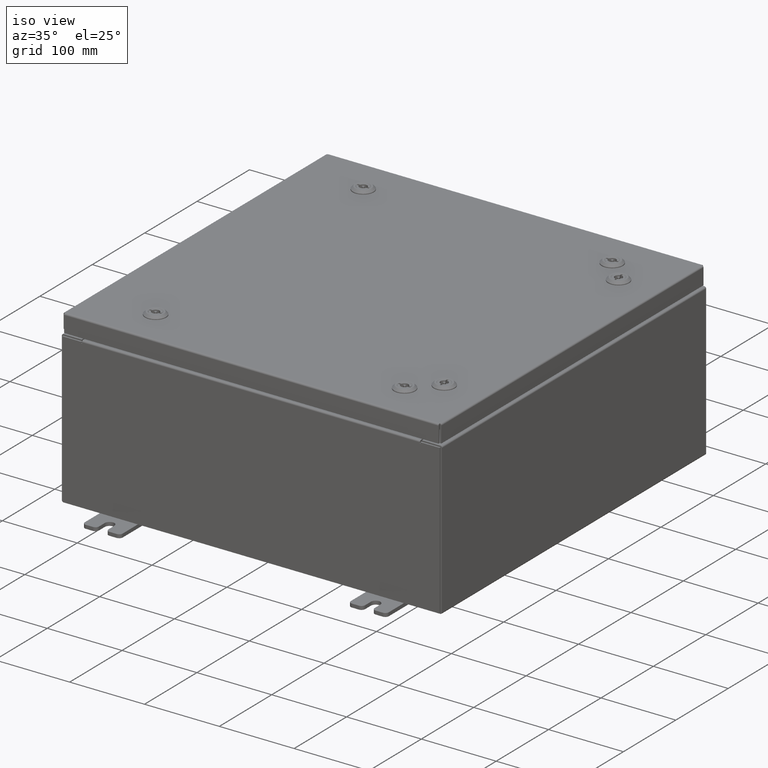
[diagram: clean part render]
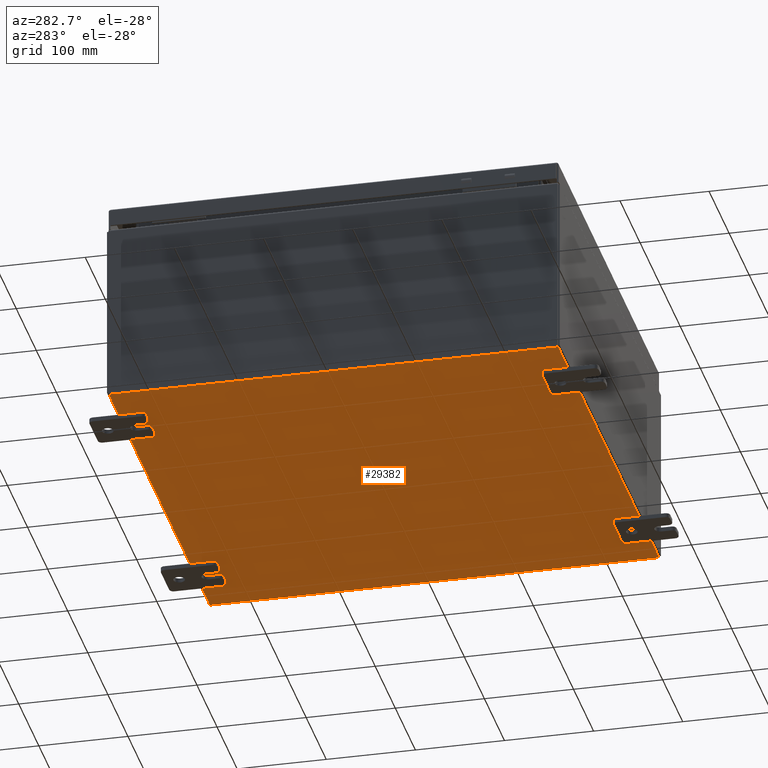
[diagram: tour spotlight — one face highlighted and labeled with its STEP entity id]
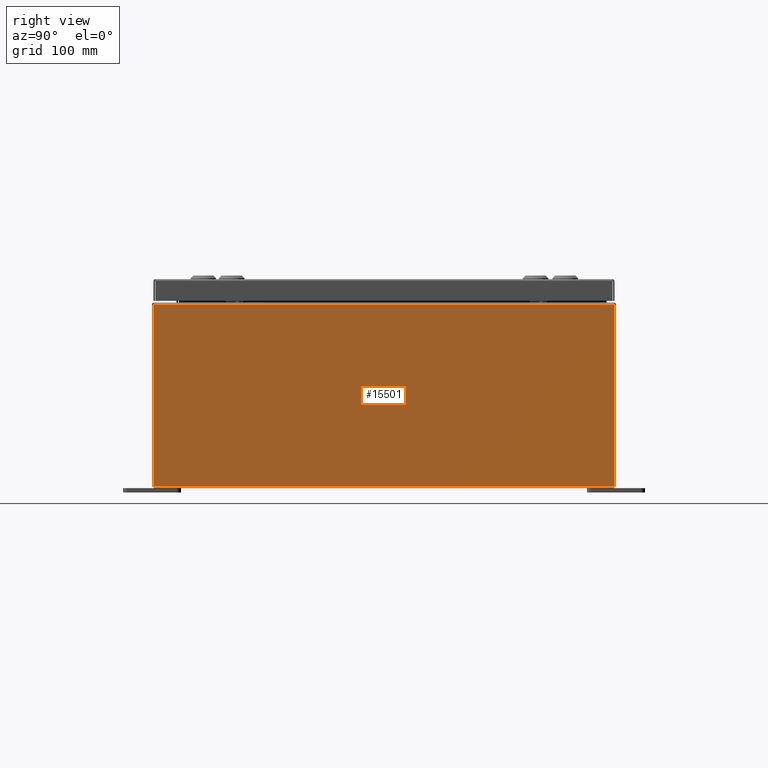
[diagram: tour spotlight — one face highlighted and labeled with its STEP entity id]
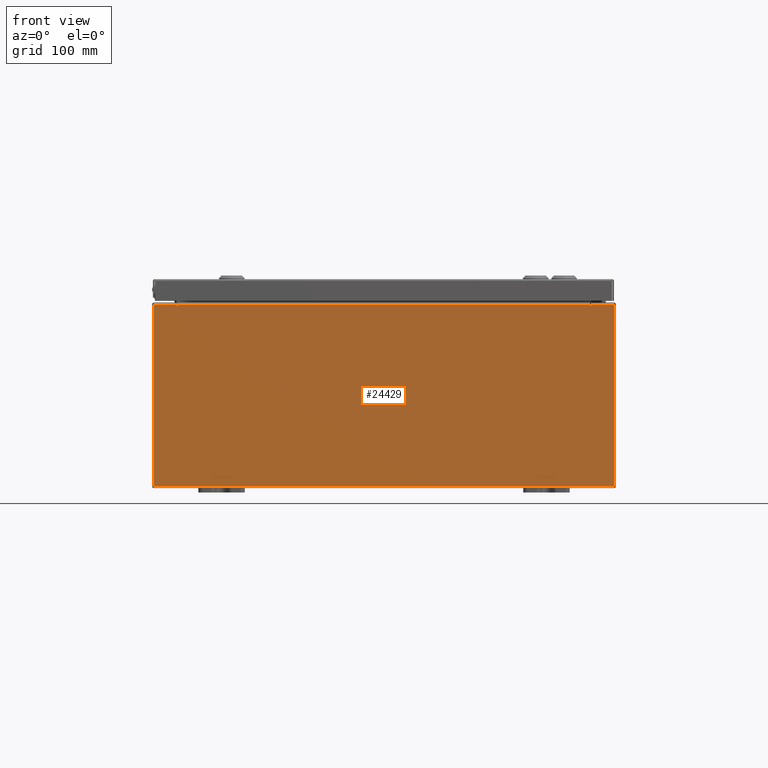
[diagram: tour spotlight — one face highlighted and labeled with its STEP entity id]
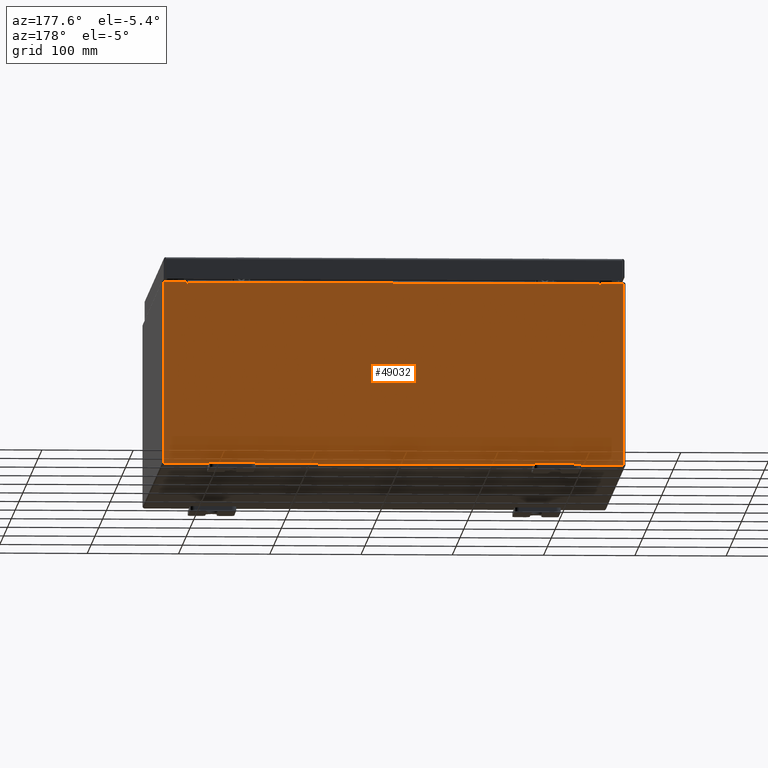
[diagram: tour spotlight — one face highlighted and labeled with its STEP entity id]
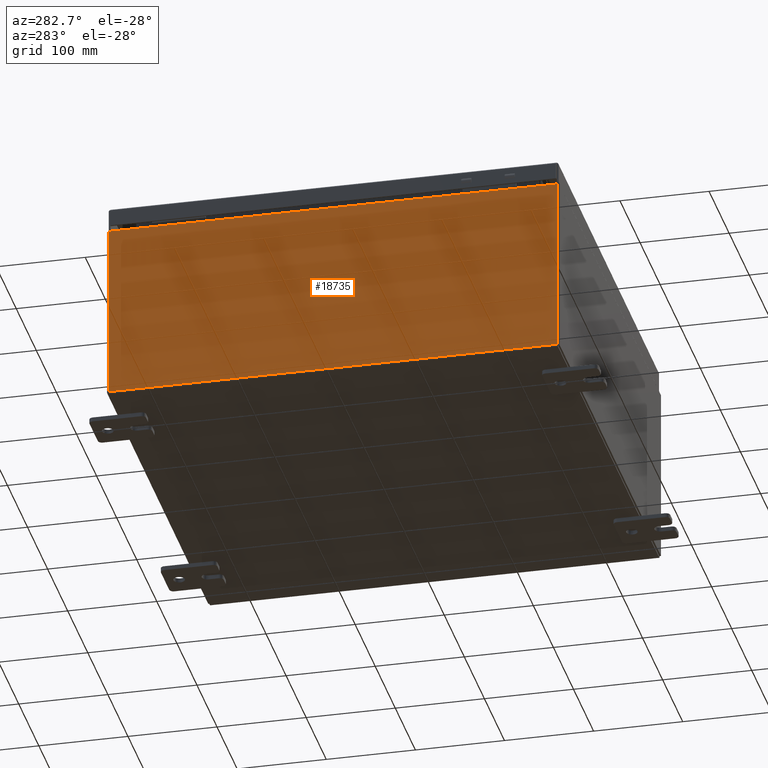
[diagram: tour spotlight — one face highlighted and labeled with its STEP entity id]
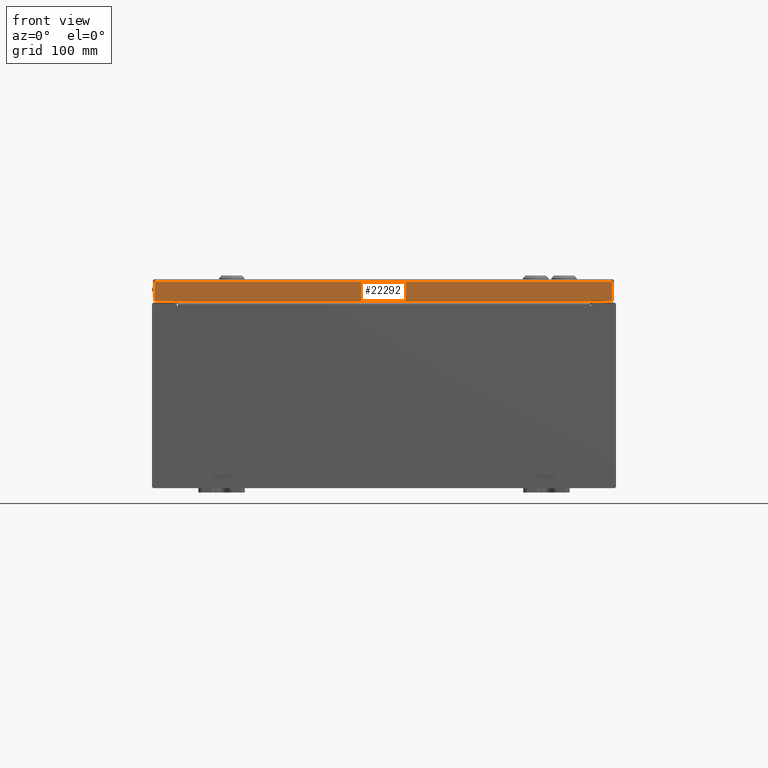
[diagram: tour spotlight — one face highlighted and labeled with its STEP entity id]
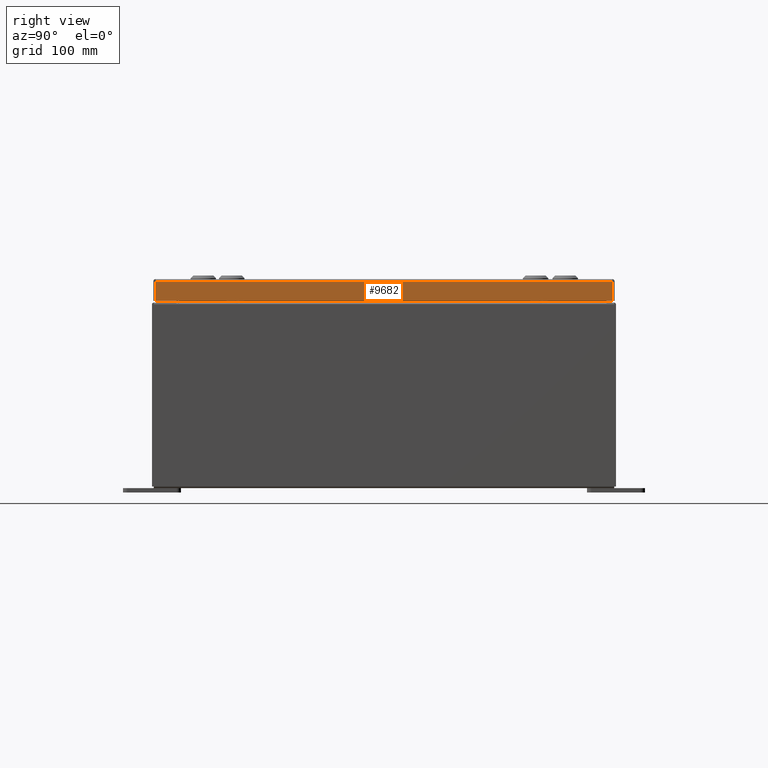
[diagram: tour spotlight — one face highlighted and labeled with its STEP entity id]
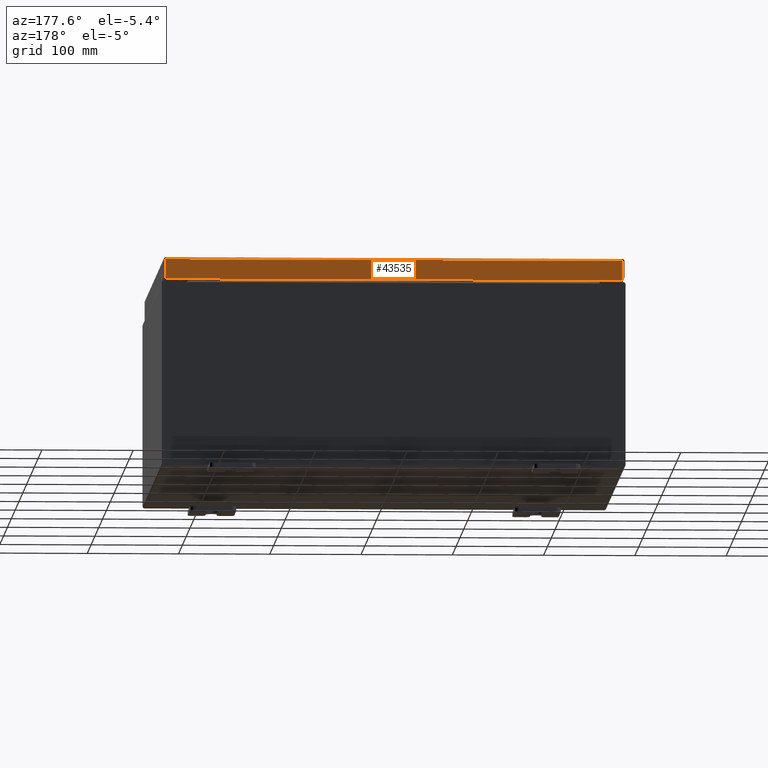
[diagram: tour spotlight — one face highlighted and labeled with its STEP entity id]
A machine part: a face-by-face anatomy tour. The part has 5420 B-rep faces; the first image is the clean iso view, then the 8 largest visible faces are spotlighted one at a time (largest first), each with its STEP entity span.

Face 1 — auxiliary view, entity #29382. In plain terms, the highlighted planar face has unit normal (0, 0, -1).
Definition (entity closure, byte-faithful):
#1431 = LINE ( 'NONE', #46999, #55066 ) ;
#3151 = FACE_OUTER_BOUND ( 'NONE', #36932, .T. ) ;
#3242 = LINE ( 'NONE', #22920, #40888 ) ;
#3939 = EDGE_CURVE ( 'NONE', #6039, #48977, #3242, .T. ) ;
#5362 = ORIENTED_EDGE ( 'NONE', *, *, #33642, .T. ) ;
#6039 = VERTEX_POINT ( 'NONE', #60725 ) ;
#6744 = VECTOR ( 'NONE', #30778, 39.37007874015748100 ) ;
#12802 = VERTEX_POINT ( 'NONE', #13145 ) ;
#13145 = CARTESIAN_POINT ( 'NONE',  ( -9.912300000000000100, -9.925299999999998200, -0.07469999999999996100 ) ) ;
#15562 = VERTEX_POINT ( 'NONE', #62225 ) ;
#20045 = ORIENTED_EDGE ( 'NONE', *, *, #62226, .T. ) ;
#20337 = LINE ( 'NONE', #43861, #31885 ) ;
#20419 = EDGE_CURVE ( 'NONE', #12802, #15562, #1431, .T. ) ;
#22920 = CARTESIAN_POINT ( 'NONE',  ( -10.00000000000000000, 9.925300000000001800, -0.07469999999999998900 ) ) ;
#25873 = CARTESIAN_POINT ( 'NONE',  ( 0.0000000000000000000, 0.0000000000000000000, -0.07469999999999998900 ) ) ;
#29382 = ADVANCED_FACE ( 'NONE', ( #3151 ), #50085, .T. ) ;
#30778 = DIRECTION ( 'NONE',  ( -0.0000000000000000000, 1.000000000000000000, -0.0000000000000000000 ) ) ;
#30831 = DIRECTION ( 'NONE',  ( -1.000000000000000000, 0.0000000000000000000, -0.0000000000000000000 ) ) ;
#31885 = VECTOR ( 'NONE', #48789, 39.37007874015748100 ) ;
#32472 = DIRECTION ( 'NONE',  ( 1.000000000000000000, 0.0000000000000000000, 0.0000000000000000000 ) ) ;
#33642 = EDGE_CURVE ( 'NONE', #12802, #48977, #44364, .T. ) ;
#36932 = EDGE_LOOP ( 'NONE', ( #55991, #5362, #47515, #20045 ) ) ;
#38048 = AXIS2_PLACEMENT_3D ( 'NONE', #25873, #60075, #30831 ) ;
#40888 = VECTOR ( 'NONE', #57109, 39.37007874015748100 ) ;
#43861 = CARTESIAN_POINT ( 'NONE',  ( 9.912300000000000100, 9.925300000000001800, -0.07469999999999996100 ) ) ;
#44364 = LINE ( 'NONE', #60017, #6744 ) ;
#46999 = CARTESIAN_POINT ( 'NONE',  ( -10.00000000000000000, -9.925299999999998200, -0.07469999999999998900 ) ) ;
#47515 = ORIENTED_EDGE ( 'NONE', *, *, #3939, .F. ) ;
#48789 = DIRECTION ( 'NONE',  ( -0.0000000000000000000, -1.000000000000000000, -0.0000000000000000000 ) ) ;
#48977 = VERTEX_POINT ( 'NONE', #51648 ) ;
#50085 = PLANE ( 'NONE',  #38048 ) ;
#51648 = CARTESIAN_POINT ( 'NONE',  ( -9.912300000000000100, 9.925300000000001800, -0.07469999999999998900 ) ) ;
#55066 = VECTOR ( 'NONE', #32472, 39.37007874015748100 ) ;
#55991 = ORIENTED_EDGE ( 'NONE', *, *, #20419, .F. ) ;
#57109 = DIRECTION ( 'NONE',  ( -1.000000000000000000, -0.0000000000000000000, -0.0000000000000000000 ) ) ;
#60017 = CARTESIAN_POINT ( 'NONE',  ( -9.912300000000000100, -9.925299999999998200, -0.07469999999999996100 ) ) ;
#60075 = DIRECTION ( 'NONE',  ( 0.0000000000000000000, 0.0000000000000000000, -1.000000000000000000 ) ) ;
#60725 = CARTESIAN_POINT ( 'NONE',  ( 9.912300000000000100, 9.925299999999998200, -0.07469999999999996100 ) ) ;
#62225 = CARTESIAN_POINT ( 'NONE',  ( 9.912300000000000100, -9.925299999999998200, -0.07469999999999998900 ) ) ;
#62226 = EDGE_CURVE ( 'NONE', #6039, #15562, #20337, .T. ) ;

Face 2 — right view, entity #15501. In plain terms, the highlighted planar face has unit normal (-1, 0, 0).
Definition (entity closure, byte-faithful):
#212 = VERTEX_POINT ( 'NONE', #44819 ) ;
#3304 = PLANE ( 'NONE',  #19532 ) ;
#3432 = ORIENTED_EDGE ( 'NONE', *, *, #36172, .T. ) ;
#3761 = CARTESIAN_POINT ( 'NONE',  ( 10.00000000000000000, 9.925300000000001800, -3.063084562896055100E-014 ) ) ;
#4114 = CARTESIAN_POINT ( 'NONE',  ( 10.00000000000002800, 9.925299999999992900, 7.837599999999999200 ) ) ;
#5298 = VECTOR ( 'NONE', #31752, 39.37007874015748100 ) ;
#5934 = DIRECTION ( 'NONE',  ( -0.0000000000000000000, -1.000000000000000000, -0.0000000000000000000 ) ) ;
#11105 = CARTESIAN_POINT ( 'NONE',  ( 10.00000000000000000, -9.925300000000000000, 0.01299999999999985200 ) ) ;
#13235 = DIRECTION ( 'NONE',  ( 3.584876173029202900E-015, 0.0000000000000000000, 1.000000000000000000 ) ) ;
#15088 = VECTOR ( 'NONE', #28267, 39.37007874015748100 ) ;
#15501 = ADVANCED_FACE ( 'NONE', ( #23965 ), #3304, .F. ) ;
#17306 = VECTOR ( 'NONE', #5934, 39.37007874015748100 ) ;
#18814 = LINE ( 'NONE', #11105, #17306 ) ;
#19532 = AXIS2_PLACEMENT_3D ( 'NONE', #62026, #42565, #13235 ) ;
#19692 = EDGE_CURVE ( 'NONE', #49571, #29050, #42915, .T. ) ;
#23802 = EDGE_CURVE ( 'NONE', #36149, #212, #42667, .T. ) ;
#23965 = FACE_OUTER_BOUND ( 'NONE', #53225, .T. ) ;
#25515 = ORIENTED_EDGE ( 'NONE', *, *, #23802, .T. ) ;
#28267 = DIRECTION ( 'NONE',  ( 3.584876173029202900E-015, -5.515194112352620500E-016, 1.000000000000000000 ) ) ;
#28877 = VECTOR ( 'NONE', #38498, 39.37007874015748100 ) ;
#29050 = VERTEX_POINT ( 'NONE', #52636 ) ;
#31752 = DIRECTION ( 'NONE',  ( -3.584876173029202900E-015, 5.515194112352620500E-016, -1.000000000000000000 ) ) ;
#31993 = LINE ( 'NONE', #4114, #28877 ) ;
#32885 = CARTESIAN_POINT ( 'NONE',  ( 10.00000000000002800, -9.925300000000001800, 7.837599999999999200 ) ) ;
#33174 = ORIENTED_EDGE ( 'NONE', *, *, #19692, .T. ) ;
#36149 = VERTEX_POINT ( 'NONE', #52761 ) ;
#36172 = EDGE_CURVE ( 'NONE', #212, #49571, #31993, .T. ) ;
#38498 = DIRECTION ( 'NONE',  ( -0.0000000000000000000, -1.000000000000000000, -0.0000000000000000000 ) ) ;
#42565 = DIRECTION ( 'NONE',  ( -1.000000000000000000, 0.0000000000000000000, 3.584876173029202900E-015 ) ) ;
#42667 = LINE ( 'NONE', #3761, #15088 ) ;
#42915 = LINE ( 'NONE', #50776, #5298 ) ;
#44819 = CARTESIAN_POINT ( 'NONE',  ( 10.00000000000002800, 9.925299999999991100, 7.837599999999999200 ) ) ;
#49571 = VERTEX_POINT ( 'NONE', #32885 ) ;
#50776 = CARTESIAN_POINT ( 'NONE',  ( 10.00000000000000000, -9.925299999999998200, -4.157531165357800300E-014 ) ) ;
#52636 = CARTESIAN_POINT ( 'NONE',  ( 10.00000000000000000, -9.925299999999998200, 0.01299999999999983500 ) ) ;
#52761 = CARTESIAN_POINT ( 'NONE',  ( 10.00000000000000000, 9.925299999999998200, 0.01299999999999985200 ) ) ;
#53225 = EDGE_LOOP ( 'NONE', ( #3432, #33174, #53595, #25515 ) ) ;
#53595 = ORIENTED_EDGE ( 'NONE', *, *, #53694, .F. ) ;
#53694 = EDGE_CURVE ( 'NONE', #36149, #29050, #18814, .T. ) ;
#62026 = CARTESIAN_POINT ( 'NONE',  ( 10.00000000000000000, 0.0000000000000000000, -3.611161566624948200E-014 ) ) ;

Face 3 — front view, entity #24429. In plain terms, the highlighted planar face has unit normal (0, 1, -0).
Definition (entity closure, byte-faithful):
#547 = ORIENTED_EDGE ( 'NONE', *, *, #50853, .F. ) ;
#611 = CARTESIAN_POINT ( 'NONE',  ( 8.905875000000000000, 0.0000000000000000000, 3.874950000000005400 ) ) ;
#1000 = CARTESIAN_POINT ( 'NONE',  ( 8.887199999999992900, 0.0000000000000000000, 9.834652777191348400E-015 ) ) ;
#2707 = FACE_OUTER_BOUND ( 'NONE', #24017, .T. ) ;
#3464 = EDGE_CURVE ( 'NONE', #13843, #4166, #28662, .T. ) ;
#3799 = CIRCLE ( 'NONE', #38506, 0.01867500000000003900 ) ;
#4166 = VERTEX_POINT ( 'NONE', #9364 ) ;
#4284 = CARTESIAN_POINT ( 'NONE',  ( -8.924550000000000000, 0.0000000000000000000, 3.925299999999986200 ) ) ;
#4856 = DIRECTION ( 'NONE',  ( 9.992007221626408900E-016, -2.013110121372521300E-016, 1.000000000000000000 ) ) ;
#4916 = PLANE ( 'NONE',  #60395 ) ;
#5390 = CARTESIAN_POINT ( 'NONE',  ( -9.925300000000000000, 0.0000000000000000000, 3.925299999999987100 ) ) ;
#5550 = DIRECTION ( 'NONE',  ( 0.0000000000000000000, 2.013110121372521300E-016, -1.000000000000000000 ) ) ;
#7394 = CARTESIAN_POINT ( 'NONE',  ( -8.924549999999998200, 0.0000000000000000000, 3.874949999999987200 ) ) ;
#9364 = CARTESIAN_POINT ( 'NONE',  ( 8.887200000000000000, 0.0000000000000000000, 3.912300000000006800 ) ) ;
#9884 = DIRECTION ( 'NONE',  ( -3.225867722578236700E-016, -1.000000000000000000, -2.013110121372518100E-016 ) ) ;
#10393 = AXIS2_PLACEMENT_3D ( 'NONE', #611, #35021, #5550 ) ;
#10395 = LINE ( 'NONE', #49230, #35014 ) ;
#11030 = VERTEX_POINT ( 'NONE', #54516 ) ;
#11195 = DIRECTION ( 'NONE',  ( 1.000000000000000000, 3.225867722578232700E-016, 9.992007221626408900E-016 ) ) ;
#11896 = VECTOR ( 'NONE', #57052, 39.37007874015748100 ) ;
#12297 = ORIENTED_EDGE ( 'NONE', *, *, #37568, .F. ) ;
#12364 = CARTESIAN_POINT ( 'NONE',  ( 9.925300000000000000, 0.0000000000000000000, -3.925299999999989800 ) ) ;
#13843 = VERTEX_POINT ( 'NONE', #21124 ) ;
#14342 = VECTOR ( 'NONE', #44783, 39.37007874015748100 ) ;
#14449 = VERTEX_POINT ( 'NONE', #52336 ) ;
#14749 = VERTEX_POINT ( 'NONE', #59781 ) ;
#15847 = ORIENTED_EDGE ( 'NONE', *, *, #53241, .T. ) ;
#16127 = VECTOR ( 'NONE', #39273, 39.37007874015748100 ) ;
#16614 = CARTESIAN_POINT ( 'NONE',  ( -8.905874999999998200, 0.0000000000000000000, 3.874949999999987200 ) ) ;
#18276 = EDGE_CURVE ( 'NONE', #14749, #35960, #3799, .T. ) ;
#18770 = EDGE_CURVE ( 'NONE', #14449, #11030, #42169, .T. ) ;
#19579 = VECTOR ( 'NONE', #4856, 39.37007874015748100 ) ;
#19789 = ORIENTED_EDGE ( 'NONE', *, *, #18276, .F. ) ;
#19797 = ORIENTED_EDGE ( 'NONE', *, *, #29991, .F. ) ;
#21124 = CARTESIAN_POINT ( 'NONE',  ( -8.887200000000000000, 0.0000000000000000000, 3.912299999999985900 ) ) ;
#21499 = DIRECTION ( 'NONE',  ( 0.0000000000000000000, 2.013110121372521300E-016, -1.000000000000000000 ) ) ;
#22523 = CARTESIAN_POINT ( 'NONE',  ( -9.925300000000000000, 0.0000000000000000000, 3.925299999999987100 ) ) ;
#23575 = VECTOR ( 'NONE', #11195, 39.37007874015748100 ) ;
#24017 = EDGE_LOOP ( 'NONE', ( #12297, #19789, #547, #25311, #19797, #36028, #57874, #40716, #39555, #57924, #49611, #15847 ) ) ;
#24429 = ADVANCED_FACE ( 'NONE', ( #2707 ), #4916, .F. ) ;
#24772 = DIRECTION ( 'NONE',  ( -9.992007221626408900E-016, 2.013110121372521300E-016, -1.000000000000000000 ) ) ;
#25311 = ORIENTED_EDGE ( 'NONE', *, *, #3464, .T. ) ;
#26075 = VECTOR ( 'NONE', #55813, 39.37007874015748100 ) ;
#26943 = EDGE_CURVE ( 'NONE', #57147, #52481, #52391, .T. ) ;
#27789 = VERTEX_POINT ( 'NONE', #12364 ) ;
#28662 = LINE ( 'NONE', #48783, #43217 ) ;
#29991 = EDGE_CURVE ( 'NONE', #52481, #4166, #61391, .T. ) ;
#30431 = LINE ( 'NONE', #39877, #14342 ) ;
#31145 = LINE ( 'NONE', #22523, #42584 ) ;
#31485 = CARTESIAN_POINT ( 'NONE',  ( 8.924550000000000000, 0.0000000000000000000, 3.925300000000006700 ) ) ;
#32661 = LINE ( 'NONE', #43929, #19579 ) ;
#35014 = VECTOR ( 'NONE', #24772, 39.37007874015748100 ) ;
#35021 = DIRECTION ( 'NONE',  ( 3.225867722578232700E-016, 1.000000000000000000, -2.013110121372520500E-016 ) ) ;
#35418 = DIRECTION ( 'NONE',  ( 9.992007221626408900E-016, -2.013110121372521300E-016, 1.000000000000000000 ) ) ;
#35960 = VERTEX_POINT ( 'NONE', #7394 ) ;
#36028 = ORIENTED_EDGE ( 'NONE', *, *, #26943, .F. ) ;
#36664 = LINE ( 'NONE', #5390, #23575 ) ;
#36947 = CARTESIAN_POINT ( 'NONE',  ( 9.925300000000000000, 0.0000000000000000000, 3.925300000000012400 ) ) ;
#37568 = EDGE_CURVE ( 'NONE', #35960, #62868, #32661, .T. ) ;
#38020 = LINE ( 'NONE', #52179, #11896 ) ;
#38506 = AXIS2_PLACEMENT_3D ( 'NONE', #16614, #50867, #21499 ) ;
#39138 = LINE ( 'NONE', #50958, #26075 ) ;
#39273 = DIRECTION ( 'NONE',  ( 9.992007221626408900E-016, -2.013110121372521300E-016, 1.000000000000000000 ) ) ;
#39281 = CARTESIAN_POINT ( 'NONE',  ( 0.0000000000000000000, 0.0000000000000000000, 0.0000000000000000000 ) ) ;
#39555 = ORIENTED_EDGE ( 'NONE', *, *, #50021, .T. ) ;
#39877 = CARTESIAN_POINT ( 'NONE',  ( 9.925300000000000000, 0.0000000000000000000, 3.925300000000012400 ) ) ;
#40716 = ORIENTED_EDGE ( 'NONE', *, *, #48720, .T. ) ;
#42169 = LINE ( 'NONE', #58887, #16127 ) ;
#42244 = DIRECTION ( 'NONE',  ( 1.000000000000000000, 3.225867722578232700E-016, 9.992007221626408900E-016 ) ) ;
#42584 = VECTOR ( 'NONE', #42244, 39.37007874015748100 ) ;
#43217 = VECTOR ( 'NONE', #49000, 39.37007874015748100 ) ;
#43929 = CARTESIAN_POINT ( 'NONE',  ( -8.924550000000005300, 0.0000000000000000000, -1.311287036958846300E-014 ) ) ;
#44194 = DIRECTION ( 'NONE',  ( -9.992007221626408900E-016, 2.013110121372521300E-016, -1.000000000000000000 ) ) ;
#44366 = VERTEX_POINT ( 'NONE', #31485 ) ;
#44783 = DIRECTION ( 'NONE',  ( -9.992007221626408900E-016, 2.013110121372521300E-016, -1.000000000000000000 ) ) ;
#45798 = CARTESIAN_POINT ( 'NONE',  ( 8.924550000000000000, 0.0000000000000000000, 3.874950000000005400 ) ) ;
#48720 = EDGE_CURVE ( 'NONE', #44366, #48948, #36664, .T. ) ;
#48783 = CARTESIAN_POINT ( 'NONE',  ( -8.887200000000000000, 0.0000000000000000000, 3.912299999999985900 ) ) ;
#48948 = VERTEX_POINT ( 'NONE', #36947 ) ;
#49000 = DIRECTION ( 'NONE',  ( 1.000000000000000000, 3.225867722578232700E-016, 9.992007221626408900E-016 ) ) ;
#49230 = CARTESIAN_POINT ( 'NONE',  ( -8.887200000000005300, 0.0000000000000000000, -9.834652777191348400E-015 ) ) ;
#49611 = ORIENTED_EDGE ( 'NONE', *, *, #18770, .T. ) ;
#49705 = CARTESIAN_POINT ( 'NONE',  ( 8.887200000000000000, 0.0000000000000000000, 3.874950000000005400 ) ) ;
#50021 = EDGE_CURVE ( 'NONE', #48948, #27789, #30431, .T. ) ;
#50853 = EDGE_CURVE ( 'NONE', #13843, #14749, #10395, .T. ) ;
#50867 = DIRECTION ( 'NONE',  ( 3.225867722578232700E-016, 1.000000000000000000, -2.013110121372520500E-016 ) ) ;
#50958 = CARTESIAN_POINT ( 'NONE',  ( 8.924549999999825900, 0.0000000000000000000, -3.775413927244011800E-013 ) ) ;
#52179 = CARTESIAN_POINT ( 'NONE',  ( -9.925300000000000000, 0.0000000000000000000, -3.925300000000012900 ) ) ;
#52336 = CARTESIAN_POINT ( 'NONE',  ( -9.925300000000000000, 0.0000000000000000000, -3.925300000000012900 ) ) ;
#52391 = CIRCLE ( 'NONE', #10393, 0.01867500000000003900 ) ;
#52481 = VERTEX_POINT ( 'NONE', #49705 ) ;
#53241 = EDGE_CURVE ( 'NONE', #11030, #62868, #31145, .T. ) ;
#54516 = CARTESIAN_POINT ( 'NONE',  ( -9.925300000000000000, 0.0000000000000000000, 3.925299999999987100 ) ) ;
#55813 = DIRECTION ( 'NONE',  ( -4.440492852616269000E-014, 2.013110121372381000E-016, -1.000000000000000000 ) ) ;
#57052 = DIRECTION ( 'NONE',  ( -1.000000000000000000, -3.225867722578232700E-016, -9.992007221626408900E-016 ) ) ;
#57147 = VERTEX_POINT ( 'NONE', #45798 ) ;
#57874 = ORIENTED_EDGE ( 'NONE', *, *, #59958, .F. ) ;
#57924 = ORIENTED_EDGE ( 'NONE', *, *, #62045, .T. ) ;
#58887 = CARTESIAN_POINT ( 'NONE',  ( -9.925300000000000000, 0.0000000000000000000, 3.925299999999987100 ) ) ;
#59781 = CARTESIAN_POINT ( 'NONE',  ( -8.887200000000000000, 0.0000000000000000000, 3.874949999999987200 ) ) ;
#59958 = EDGE_CURVE ( 'NONE', #44366, #57147, #39138, .T. ) ;
#60395 = AXIS2_PLACEMENT_3D ( 'NONE', #39281, #9884, #44194 ) ;
#61391 = LINE ( 'NONE', #1000, #62912 ) ;
#62045 = EDGE_CURVE ( 'NONE', #27789, #14449, #38020, .T. ) ;
#62868 = VERTEX_POINT ( 'NONE', #4284 ) ;
#62912 = VECTOR ( 'NONE', #35418, 39.37007874015748100 ) ;

Face 4 — auxiliary view, entity #49032. In plain terms, the highlighted planar face has unit normal (0, -1, 0).
Definition (entity closure, byte-faithful):
#18 = DIRECTION ( 'NONE',  ( -0.0000000000000000000, 1.000000000000000000, -0.0000000000000000000 ) ) ;
#97 = CARTESIAN_POINT ( 'NONE',  ( -9.925300000000000000, 0.0000000000000000000, 3.925300000000000500 ) ) ;
#175 = DIRECTION ( 'NONE',  ( 0.0000000000000000000, 0.0000000000000000000, -1.000000000000000000 ) ) ;
#891 = LINE ( 'NONE', #60546, #51543 ) ;
#1021 = CARTESIAN_POINT ( 'NONE',  ( 8.924550000000000000, 0.0000000000000000000, 3.925300000000000500 ) ) ;
#1205 = LINE ( 'NONE', #30441, #38862 ) ;
#1266 = CARTESIAN_POINT ( 'NONE',  ( -8.887200000000000000, 0.0000000000000000000, 0.0000000000000000000 ) ) ;
#1287 = VERTEX_POINT ( 'NONE', #60083 ) ;
#1749 = DIRECTION ( 'NONE',  ( 1.000000000000000000, 0.0000000000000000000, 0.0000000000000000000 ) ) ;
#1821 = CARTESIAN_POINT ( 'NONE',  ( 9.925300000000000000, 0.0000000000000000000, 3.925300000000000500 ) ) ;
#2211 = CIRCLE ( 'NONE', #28259, 0.01867500000000003900 ) ;
#2446 = ORIENTED_EDGE ( 'NONE', *, *, #33828, .F. ) ;
#3025 = VERTEX_POINT ( 'NONE', #27939 ) ;
#5802 = ORIENTED_EDGE ( 'NONE', *, *, #19312, .F. ) ;
#5872 = EDGE_CURVE ( 'NONE', #35260, #61837, #59653, .T. ) ;
#5942 = DIRECTION ( 'NONE',  ( 0.0000000000000000000, 0.0000000000000000000, 1.000000000000000000 ) ) ;
#7142 = ORIENTED_EDGE ( 'NONE', *, *, #12822, .T. ) ;
#7961 = VERTEX_POINT ( 'NONE', #11394 ) ;
#8235 = AXIS2_PLACEMENT_3D ( 'NONE', #58910, #29634, #175 ) ;
#8696 = DIRECTION ( 'NONE',  ( 0.0000000000000000000, -0.0000000000000000000, -1.000000000000000000 ) ) ;
#9258 = VECTOR ( 'NONE', #15885, 39.37007874015748100 ) ;
#9896 = EDGE_CURVE ( 'NONE', #3025, #1287, #17351, .T. ) ;
#10394 = VERTEX_POINT ( 'NONE', #23342 ) ;
#10909 = CARTESIAN_POINT ( 'NONE',  ( -9.925300000000000000, 0.0000000000000000000, 3.925300000000000500 ) ) ;
#11203 = CARTESIAN_POINT ( 'NONE',  ( -8.887200000000000000, 0.0000000000000000000, 3.912300000000000100 ) ) ;
#11358 = CARTESIAN_POINT ( 'NONE',  ( -9.925300000000000000, 0.0000000000000000000, 3.925300000000000500 ) ) ;
#11394 = CARTESIAN_POINT ( 'NONE',  ( -8.924549999999998200, 0.0000000000000000000, 3.874949999999999200 ) ) ;
#11490 = ORIENTED_EDGE ( 'NONE', *, *, #15303, .F. ) ;
#12822 = EDGE_CURVE ( 'NONE', #19597, #10394, #56999, .T. ) ;
#15303 = EDGE_CURVE ( 'NONE', #35260, #3025, #891, .T. ) ;
#15885 = DIRECTION ( 'NONE',  ( -0.0000000000000000000, -0.0000000000000000000, 1.000000000000000000 ) ) ;
#16337 = AXIS2_PLACEMENT_3D ( 'NONE', #33211, #38127, #8696 ) ;
#17351 = CIRCLE ( 'NONE', #8235, 0.01867500000000003900 ) ;
#17851 = CARTESIAN_POINT ( 'NONE',  ( 8.887200000000000000, 0.0000000000000000000, 0.0000000000000000000 ) ) ;
#18303 = DIRECTION ( 'NONE',  ( 1.000000000000000000, 0.0000000000000000000, 0.0000000000000000000 ) ) ;
#19312 = EDGE_CURVE ( 'NONE', #56837, #7961, #2211, .T. ) ;
#19597 = VERTEX_POINT ( 'NONE', #11203 ) ;
#19828 = ORIENTED_EDGE ( 'NONE', *, *, #21809, .F. ) ;
#20505 = VECTOR ( 'NONE', #26870, 39.37007874015748100 ) ;
#21053 = VECTOR ( 'NONE', #1749, 39.37007874015748100 ) ;
#21552 = DIRECTION ( 'NONE',  ( 0.0000000000000000000, 0.0000000000000000000, -1.000000000000000000 ) ) ;
#21809 = EDGE_CURVE ( 'NONE', #1287, #10394, #57288, .T. ) ;
#23342 = CARTESIAN_POINT ( 'NONE',  ( 8.887200000000000000, 0.0000000000000000000, 3.912300000000000100 ) ) ;
#23696 = ORIENTED_EDGE ( 'NONE', *, *, #5872, .T. ) ;
#26023 = ORIENTED_EDGE ( 'NONE', *, *, #48872, .T. ) ;
#26718 = VECTOR ( 'NONE', #35661, 39.37007874015748100 ) ;
#26870 = DIRECTION ( 'NONE',  ( -1.000000000000000000, -0.0000000000000000000, -0.0000000000000000000 ) ) ;
#27939 = CARTESIAN_POINT ( 'NONE',  ( 8.924550000000000000, 0.0000000000000000000, 3.874949999999999200 ) ) ;
#28245 = PLANE ( 'NONE',  #16337 ) ;
#28259 = AXIS2_PLACEMENT_3D ( 'NONE', #29457, #18, #34431 ) ;
#29457 = CARTESIAN_POINT ( 'NONE',  ( -8.905874999999998200, 0.0000000000000000000, 3.874949999999999200 ) ) ;
#29634 = DIRECTION ( 'NONE',  ( -0.0000000000000000000, 1.000000000000000000, -0.0000000000000000000 ) ) ;
#29998 = EDGE_CURVE ( 'NONE', #49722, #32125, #48434, .T. ) ;
#30441 = CARTESIAN_POINT ( 'NONE',  ( -8.924550000000000000, 0.0000000000000000000, 0.0000000000000000000 ) ) ;
#31453 = CARTESIAN_POINT ( 'NONE',  ( 9.925300000000000000, 0.0000000000000000000, -3.925299999999999600 ) ) ;
#31742 = ORIENTED_EDGE ( 'NONE', *, *, #50064, .F. ) ;
#32125 = VERTEX_POINT ( 'NONE', #97 ) ;
#33031 = VERTEX_POINT ( 'NONE', #31453 ) ;
#33211 = CARTESIAN_POINT ( 'NONE',  ( 0.0000000000000000000, 0.0000000000000000000, 0.0000000000000000000 ) ) ;
#33616 = LINE ( 'NONE', #56098, #20505 ) ;
#33727 = VECTOR ( 'NONE', #36270, 39.37007874015748100 ) ;
#33828 = EDGE_CURVE ( 'NONE', #19597, #56837, #52711, .T. ) ;
#34431 = DIRECTION ( 'NONE',  ( 0.0000000000000000000, 0.0000000000000000000, -1.000000000000000000 ) ) ;
#35260 = VERTEX_POINT ( 'NONE', #1021 ) ;
#35661 = DIRECTION ( 'NONE',  ( 0.0000000000000000000, 0.0000000000000000000, -1.000000000000000000 ) ) ;
#35708 = LINE ( 'NONE', #55493, #21053 ) ;
#36270 = DIRECTION ( 'NONE',  ( 1.000000000000000000, 0.0000000000000000000, 0.0000000000000000000 ) ) ;
#36427 = DIRECTION ( 'NONE',  ( -4.340572780400004900E-014, 0.0000000000000000000, -1.000000000000000000 ) ) ;
#36983 = ORIENTED_EDGE ( 'NONE', *, *, #62560, .T. ) ;
#37787 = EDGE_LOOP ( 'NONE', ( #31742, #5802, #2446, #7142, #19828, #50534, #11490, #23696, #38532, #26023, #59366, #36983 ) ) ;
#38127 = DIRECTION ( 'NONE',  ( 0.0000000000000000000, -1.000000000000000000, 0.0000000000000000000 ) ) ;
#38532 = ORIENTED_EDGE ( 'NONE', *, *, #48127, .T. ) ;
#38862 = VECTOR ( 'NONE', #5942, 39.37007874015748100 ) ;
#39060 = CARTESIAN_POINT ( 'NONE',  ( -8.887200000000000000, 0.0000000000000000000, 3.874949999999999200 ) ) ;
#42020 = LINE ( 'NONE', #50921, #53483 ) ;
#44072 = VECTOR ( 'NONE', #18303, 39.37007874015748100 ) ;
#44347 = VECTOR ( 'NONE', #61902, 39.37007874015748100 ) ;
#48127 = EDGE_CURVE ( 'NONE', #61837, #33031, #42020, .T. ) ;
#48256 = CARTESIAN_POINT ( 'NONE',  ( -9.925300000000000000, 0.0000000000000000000, -3.925299999999999600 ) ) ;
#48434 = LINE ( 'NONE', #10909, #9258 ) ;
#48872 = EDGE_CURVE ( 'NONE', #33031, #49722, #33616, .T. ) ;
#49032 = ADVANCED_FACE ( 'NONE', ( #53414 ), #28245, .F. ) ;
#49722 = VERTEX_POINT ( 'NONE', #48256 ) ;
#50064 = EDGE_CURVE ( 'NONE', #7961, #62232, #1205, .T. ) ;
#50534 = ORIENTED_EDGE ( 'NONE', *, *, #9896, .F. ) ;
#50921 = CARTESIAN_POINT ( 'NONE',  ( 9.925300000000000000, 0.0000000000000000000, 3.925300000000000500 ) ) ;
#51543 = VECTOR ( 'NONE', #36427, 39.37007874015748100 ) ;
#52702 = CARTESIAN_POINT ( 'NONE',  ( -8.887200000000000000, 0.0000000000000000000, 3.912300000000000100 ) ) ;
#52711 = LINE ( 'NONE', #1266, #26718 ) ;
#53414 = FACE_OUTER_BOUND ( 'NONE', #37787, .T. ) ;
#53483 = VECTOR ( 'NONE', #21552, 39.37007874015748100 ) ;
#55493 = CARTESIAN_POINT ( 'NONE',  ( -9.925300000000000000, 0.0000000000000000000, 3.925300000000000500 ) ) ;
#56098 = CARTESIAN_POINT ( 'NONE',  ( -9.925300000000000000, 0.0000000000000000000, -3.925299999999999600 ) ) ;
#56837 = VERTEX_POINT ( 'NONE', #39060 ) ;
#56999 = LINE ( 'NONE', #52702, #44072 ) ;
#57288 = LINE ( 'NONE', #17851, #44347 ) ;
#58548 = CARTESIAN_POINT ( 'NONE',  ( -8.924550000000000000, 0.0000000000000000000, 3.925300000000000500 ) ) ;
#58910 = CARTESIAN_POINT ( 'NONE',  ( 8.905875000000000000, 0.0000000000000000000, 3.874949999999999200 ) ) ;
#59366 = ORIENTED_EDGE ( 'NONE', *, *, #29998, .T. ) ;
#59653 = LINE ( 'NONE', #11358, #33727 ) ;
#60083 = CARTESIAN_POINT ( 'NONE',  ( 8.887200000000000000, 0.0000000000000000000, 3.874949999999999200 ) ) ;
#60546 = CARTESIAN_POINT ( 'NONE',  ( 8.924549999999831200, 0.0000000000000000000, -3.873760455015925100E-013 ) ) ;
#61837 = VERTEX_POINT ( 'NONE', #1821 ) ;
#61902 = DIRECTION ( 'NONE',  ( 0.0000000000000000000, 0.0000000000000000000, 1.000000000000000000 ) ) ;
#62232 = VERTEX_POINT ( 'NONE', #58548 ) ;
#62560 = EDGE_CURVE ( 'NONE', #32125, #62232, #35708, .T. ) ;

Face 5 — auxiliary view, entity #18735. In plain terms, the highlighted planar face has unit normal (1, 0, 0).
Definition (entity closure, byte-faithful):
#109 = ORIENTED_EDGE ( 'NONE', *, *, #2716, .T. ) ;
#2716 = EDGE_CURVE ( 'NONE', #5890, #22263, #22551, .T. ) ;
#5890 = VERTEX_POINT ( 'NONE', #60592 ) ;
#6427 = AXIS2_PLACEMENT_3D ( 'NONE', #29399, #9871, #44179 ) ;
#9483 = VECTOR ( 'NONE', #45350, 39.37007874015748100 ) ;
#9871 = DIRECTION ( 'NONE',  ( 1.000000000000000000, 0.0000000000000000000, 3.584876173029202900E-015 ) ) ;
#10102 = ORIENTED_EDGE ( 'NONE', *, *, #38950, .F. ) ;
#15022 = CARTESIAN_POINT ( 'NONE',  ( -10.00000000000002800, 9.925299999999998200, 7.837599999999999200 ) ) ;
#15920 = EDGE_LOOP ( 'NONE', ( #109, #51045, #10102, #33503 ) ) ;
#18002 = CARTESIAN_POINT ( 'NONE',  ( -10.00000000000000000, 9.925300000000000000, 0.01299999999999985200 ) ) ;
#18735 = ADVANCED_FACE ( 'NONE', ( #45262 ), #34370, .F. ) ;
#22263 = VERTEX_POINT ( 'NONE', #15022 ) ;
#22500 = VERTEX_POINT ( 'NONE', #28056 ) ;
#22551 = LINE ( 'NONE', #40426, #9483 ) ;
#25839 = VECTOR ( 'NONE', #59735, 39.37007874015748100 ) ;
#27840 = EDGE_CURVE ( 'NONE', #22263, #22500, #29412, .T. ) ;
#28056 = CARTESIAN_POINT ( 'NONE',  ( -10.00000000000000000, 9.925300000000001800, 0.01299999999999983500 ) ) ;
#28099 = CARTESIAN_POINT ( 'NONE',  ( -10.00000000000000000, -9.925299999999998200, 0.01299999999999985200 ) ) ;
#29399 = CARTESIAN_POINT ( 'NONE',  ( -10.00000000000000000, 0.0000000000000000000, -3.611161566624948200E-014 ) ) ;
#29412 = LINE ( 'NONE', #42787, #37863 ) ;
#33335 = VECTOR ( 'NONE', #52219, 39.37007874015748100 ) ;
#33503 = ORIENTED_EDGE ( 'NONE', *, *, #35313, .T. ) ;
#34370 = PLANE ( 'NONE',  #6427 ) ;
#35313 = EDGE_CURVE ( 'NONE', #53322, #5890, #38898, .T. ) ;
#35640 = CARTESIAN_POINT ( 'NONE',  ( -10.00000000000000000, -9.925299999999998200, -4.157531165357800300E-014 ) ) ;
#37863 = VECTOR ( 'NONE', #38111, 39.37007874015748100 ) ;
#38111 = DIRECTION ( 'NONE',  ( 3.584876173029202900E-015, 5.515194112352620500E-016, -1.000000000000000000 ) ) ;
#38898 = LINE ( 'NONE', #35640, #25839 ) ;
#38950 = EDGE_CURVE ( 'NONE', #53322, #22500, #46331, .T. ) ;
#40426 = CARTESIAN_POINT ( 'NONE',  ( -10.00000000000002800, -9.925299999999998200, 7.837599999999999200 ) ) ;
#42787 = CARTESIAN_POINT ( 'NONE',  ( -10.00000000000000000, 9.925300000000001800, -3.063084562896055100E-014 ) ) ;
#44179 = DIRECTION ( 'NONE',  ( 3.584876173029202900E-015, 0.0000000000000000000, -1.000000000000000000 ) ) ;
#45262 = FACE_OUTER_BOUND ( 'NONE', #15920, .T. ) ;
#45350 = DIRECTION ( 'NONE',  ( 0.0000000000000000000, 1.000000000000000000, 0.0000000000000000000 ) ) ;
#46331 = LINE ( 'NONE', #18002, #33335 ) ;
#51045 = ORIENTED_EDGE ( 'NONE', *, *, #27840, .T. ) ;
#52219 = DIRECTION ( 'NONE',  ( -0.0000000000000000000, 1.000000000000000000, -0.0000000000000000000 ) ) ;
#53322 = VERTEX_POINT ( 'NONE', #28099 ) ;
#59735 = DIRECTION ( 'NONE',  ( -3.584876173029202900E-015, -5.515194112352620500E-016, 1.000000000000000000 ) ) ;
#60592 = CARTESIAN_POINT ( 'NONE',  ( -10.00000000000002800, -9.925299999999996500, 7.837599999999999200 ) ) ;

Face 6 — front view, entity #22292. In plain terms, the highlighted planar face has unit normal (-0, 1, -0).
Definition (entity closure, byte-faithful):
#1197 = LINE ( 'NONE', #48627, #51827 ) ;
#1868 = DIRECTION ( 'NONE',  ( -3.132763603081817700E-031, 1.000000000000000000, -2.532419924601866100E-015 ) ) ;
#2427 = VECTOR ( 'NONE', #58309, 39.37007874015748100 ) ;
#3136 = CARTESIAN_POINT ( 'NONE',  ( -9.848657864376265900, -9.937500000000001800, 2.513300154171122100E-014 ) ) ;
#5247 = VERTEX_POINT ( 'NONE', #36839 ) ;
#8464 = EDGE_CURVE ( 'NONE', #26131, #44421, #45797, .T. ) ;
#9197 = EDGE_CURVE ( 'NONE', #5247, #38361, #1197, .T. ) ;
#10879 = CARTESIAN_POINT ( 'NONE',  ( -9.848657864376264100, -9.937500000000003600, -0.9376999999999969800 ) ) ;
#14002 = LINE ( 'NONE', #29034, #2427 ) ;
#16534 = CARTESIAN_POINT ( 'NONE',  ( 0.0000000000000000000, -9.937500000000001800, 2.513300154171122100E-014 ) ) ;
#19391 = ORIENTED_EDGE ( 'NONE', *, *, #9197, .F. ) ;
#19726 = VECTOR ( 'NONE', #20073, 39.37007874015748100 ) ;
#20073 = DIRECTION ( 'NONE',  ( 1.000000000000000000, 3.132763603081818100E-031, -7.843572268217993600E-046 ) ) ;
#21762 = VECTOR ( 'NONE', #37527, 39.37007874015748100 ) ;
#22292 = ADVANCED_FACE ( 'NONE', ( #45079 ), #55629, .F. ) ;
#24189 = DIRECTION ( 'NONE',  ( -1.000000000000000000, 4.379057701015054300E-047, 1.237063242414006500E-016 ) ) ;
#25156 = CARTESIAN_POINT ( 'NONE',  ( -9.848657864376264100, -9.937500000000001800, -0.08770000000000026400 ) ) ;
#25809 = EDGE_LOOP ( 'NONE', ( #58706, #27595, #19391, #41511 ) ) ;
#26131 = VERTEX_POINT ( 'NONE', #25156 ) ;
#27595 = ORIENTED_EDGE ( 'NONE', *, *, #38918, .T. ) ;
#29034 = CARTESIAN_POINT ( 'NONE',  ( 9.848657864376265900, -9.937500000000001800, -0.07470000000000015500 ) ) ;
#36276 = DIRECTION ( 'NONE',  ( 0.0000000000000000000, 2.532419924601866100E-015, 1.000000000000000000 ) ) ;
#36839 = CARTESIAN_POINT ( 'NONE',  ( 9.848657864376265900, -9.937500000000003600, -0.9377000000000002000 ) ) ;
#37527 = DIRECTION ( 'NONE',  ( 0.0000000000000000000, -2.532419924601866100E-015, -1.000000000000000000 ) ) ;
#38361 = VERTEX_POINT ( 'NONE', #10879 ) ;
#38918 = EDGE_CURVE ( 'NONE', #26131, #38361, #59264, .T. ) ;
#41511 = ORIENTED_EDGE ( 'NONE', *, *, #43141, .F. ) ;
#43141 = EDGE_CURVE ( 'NONE', #44421, #5247, #14002, .T. ) ;
#44421 = VERTEX_POINT ( 'NONE', #60928 ) ;
#45079 = FACE_OUTER_BOUND ( 'NONE', #25809, .T. ) ;
#45797 = LINE ( 'NONE', #54273, #19726 ) ;
#48627 = CARTESIAN_POINT ( 'NONE',  ( 9.937499999999998200, -9.937500000000003600, -0.9377000000000002000 ) ) ;
#51827 = VECTOR ( 'NONE', #24189, 39.37007874015748100 ) ;
#52483 = AXIS2_PLACEMENT_3D ( 'NONE', #16534, #1868, #36276 ) ;
#54273 = CARTESIAN_POINT ( 'NONE',  ( 9.937499999999998200, -9.937500000000001800, -0.08770000000000026400 ) ) ;
#55629 = PLANE ( 'NONE',  #52483 ) ;
#58309 = DIRECTION ( 'NONE',  ( -0.0000000000000000000, -2.532419924601866100E-015, -1.000000000000000000 ) ) ;
#58706 = ORIENTED_EDGE ( 'NONE', *, *, #8464, .F. ) ;
#59264 = LINE ( 'NONE', #3136, #21762 ) ;
#60928 = CARTESIAN_POINT ( 'NONE',  ( 9.848657864376264100, -9.937500000000001800, -0.08770000000000026400 ) ) ;

Face 7 — right view, entity #9682. In plain terms, the highlighted planar face has unit normal (1, 0, 0).
Definition (entity closure, byte-faithful):
#367 = FACE_OUTER_BOUND ( 'NONE', #41623, .T. ) ;
#470 = EDGE_CURVE ( 'NONE', #44924, #51805, #20403, .T. ) ;
#3436 = CARTESIAN_POINT ( 'NONE',  ( 9.937499999999998200, 0.0000000000000000000, 2.513300154171122100E-014 ) ) ;
#4225 = VECTOR ( 'NONE', #36835, 39.37007874015748100 ) ;
#7258 = ORIENTED_EDGE ( 'NONE', *, *, #11328, .F. ) ;
#8979 = ORIENTED_EDGE ( 'NONE', *, *, #22096, .F. ) ;
#9682 = ADVANCED_FACE ( 'NONE', ( #367 ), #18535, .T. ) ;
#11328 = EDGE_CURVE ( 'NONE', #44924, #27415, #30372, .T. ) ;
#16398 = CARTESIAN_POINT ( 'NONE',  ( 9.937499999999998200, 9.848657864376265900, 9.397557098205065300E-014 ) ) ;
#17128 = CARTESIAN_POINT ( 'NONE',  ( 9.937499999999998200, 0.0000000000000000000, -0.08770000000000026400 ) ) ;
#18535 = PLANE ( 'NONE',  #39092 ) ;
#19474 = VECTOR ( 'NONE', #31922, 39.37007874015748100 ) ;
#20403 = LINE ( 'NONE', #16398, #43400 ) ;
#22096 = EDGE_CURVE ( 'NONE', #27415, #55672, #28242, .T. ) ;
#22173 = ORIENTED_EDGE ( 'NONE', *, *, #470, .T. ) ;
#24691 = CARTESIAN_POINT ( 'NONE',  ( 9.937499999999998200, 9.848657864376269400, -0.08770000000000026400 ) ) ;
#25140 = VECTOR ( 'NONE', #58014, 39.37007874015748100 ) ;
#27415 = VERTEX_POINT ( 'NONE', #47605 ) ;
#28242 = LINE ( 'NONE', #53084, #25140 ) ;
#28379 = DIRECTION ( 'NONE',  ( 2.532419924601866100E-015, 0.0000000000000000000, -1.000000000000000000 ) ) ;
#30372 = LINE ( 'NONE', #51356, #4225 ) ;
#31922 = DIRECTION ( 'NONE',  ( 0.0000000000000000000, -1.000000000000000000, 0.0000000000000000000 ) ) ;
#36835 = DIRECTION ( 'NONE',  ( 0.0000000000000000000, -1.000000000000000000, 0.0000000000000000000 ) ) ;
#39092 = AXIS2_PLACEMENT_3D ( 'NONE', #3436, #57631, #28379 ) ;
#39411 = EDGE_CURVE ( 'NONE', #51805, #55672, #45532, .T. ) ;
#40013 = CARTESIAN_POINT ( 'NONE',  ( 9.937499999999998200, -9.848657864376271200, -0.08770000000000026400 ) ) ;
#41623 = EDGE_LOOP ( 'NONE', ( #8979, #7258, #22173, #59030 ) ) ;
#43400 = VECTOR ( 'NONE', #45525, 39.37007874015748100 ) ;
#44924 = VERTEX_POINT ( 'NONE', #48746 ) ;
#45525 = DIRECTION ( 'NONE',  ( -2.532419924601866100E-015, -6.982962677686267500E-015, 1.000000000000000000 ) ) ;
#45532 = LINE ( 'NONE', #17128, #19474 ) ;
#47605 = CARTESIAN_POINT ( 'NONE',  ( 9.937500000000000000, -9.848657864376264100, -0.9377000000000002000 ) ) ;
#48746 = CARTESIAN_POINT ( 'NONE',  ( 9.937500000000000000, 9.848657864376273000, -0.9377000000000002000 ) ) ;
#51356 = CARTESIAN_POINT ( 'NONE',  ( 9.937500000000000000, -9.937500000000001800, -0.9377000000000002000 ) ) ;
#51805 = VERTEX_POINT ( 'NONE', #24691 ) ;
#53084 = CARTESIAN_POINT ( 'NONE',  ( 9.937499999999998200, -9.848657864376271200, -0.07470000000000015500 ) ) ;
#55672 = VERTEX_POINT ( 'NONE', #40013 ) ;
#57631 = DIRECTION ( 'NONE',  ( 1.000000000000000000, 0.0000000000000000000, 2.532419924601866100E-015 ) ) ;
#58014 = DIRECTION ( 'NONE',  ( -2.532419924601866100E-015, -6.982962677686267500E-015, 1.000000000000000000 ) ) ;
#59030 = ORIENTED_EDGE ( 'NONE', *, *, #39411, .T. ) ;

Face 8 — auxiliary view, entity #43535. In plain terms, the highlighted planar face has unit normal (0, -1, -0).
Definition (entity closure, byte-faithful):
#1427 = LINE ( 'NONE', #28177, #52038 ) ;
#2136 = CARTESIAN_POINT ( 'NONE',  ( 0.0000000000000000000, 9.937499999999998200, 2.513300154171122100E-014 ) ) ;
#4969 = ORIENTED_EDGE ( 'NONE', *, *, #57027, .T. ) ;
#5868 = VERTEX_POINT ( 'NONE', #26360 ) ;
#8632 = DIRECTION ( 'NONE',  ( -0.0000000000000000000, 2.532419924601859000E-015, -1.000000000000000000 ) ) ;
#9669 = ORIENTED_EDGE ( 'NONE', *, *, #60930, .F. ) ;
#10832 = CARTESIAN_POINT ( 'NONE',  ( 9.848657864376265900, 9.937499999999998200, 2.513300154171122100E-014 ) ) ;
#10908 = VECTOR ( 'NONE', #50067, 39.37007874015748100 ) ;
#12025 = PLANE ( 'NONE',  #62904 ) ;
#17008 = DIRECTION ( 'NONE',  ( 0.0000000000000000000, 2.532419924601859000E-015, -1.000000000000000000 ) ) ;
#18668 = EDGE_CURVE ( 'NONE', #31144, #5868, #46807, .T. ) ;
#23609 = CARTESIAN_POINT ( 'NONE',  ( -9.937500000000000000, 9.937499999999998200, -0.08770000000000026400 ) ) ;
#25318 = ORIENTED_EDGE ( 'NONE', *, *, #18668, .F. ) ;
#26360 = CARTESIAN_POINT ( 'NONE',  ( -9.848657864376265900, 9.937499999999998200, -0.08770000000000026400 ) ) ;
#28177 = CARTESIAN_POINT ( 'NONE',  ( -9.848657864376269400, 9.937499999999998200, -0.07470000000000015500 ) ) ;
#29594 = ORIENTED_EDGE ( 'NONE', *, *, #42515, .F. ) ;
#30607 = CARTESIAN_POINT ( 'NONE',  ( 9.848657864376265900, 9.937500000000000000, -0.9377000000000002000 ) ) ;
#31144 = VERTEX_POINT ( 'NONE', #32944 ) ;
#31606 = CARTESIAN_POINT ( 'NONE',  ( -9.848657864376269400, 9.937500000000000000, -0.9377000000000024200 ) ) ;
#32944 = CARTESIAN_POINT ( 'NONE',  ( 9.848657864376265900, 9.937499999999998200, -0.08770000000000026400 ) ) ;
#40810 = FACE_OUTER_BOUND ( 'NONE', #52459, .T. ) ;
#41370 = VERTEX_POINT ( 'NONE', #30607 ) ;
#42515 = EDGE_CURVE ( 'NONE', #43526, #41370, #55334, .T. ) ;
#43526 = VERTEX_POINT ( 'NONE', #31606 ) ;
#43535 = ADVANCED_FACE ( 'NONE', ( #40810 ), #12025, .F. ) ;
#46334 = DIRECTION ( 'NONE',  ( 3.132763603081808900E-031, -1.000000000000000000, -2.532419924601859000E-015 ) ) ;
#46807 = LINE ( 'NONE', #23609, #58223 ) ;
#49579 = CARTESIAN_POINT ( 'NONE',  ( -9.937500000000000000, 9.937500000000000000, -0.9377000000000024200 ) ) ;
#50067 = DIRECTION ( 'NONE',  ( 0.0000000000000000000, 2.532419924601859000E-015, -1.000000000000000000 ) ) ;
#52038 = VECTOR ( 'NONE', #8632, 39.37007874015748100 ) ;
#52459 = EDGE_LOOP ( 'NONE', ( #25318, #4969, #29594, #9669 ) ) ;
#55334 = LINE ( 'NONE', #49579, #56878 ) ;
#56878 = VECTOR ( 'NONE', #59149, 39.37007874015748100 ) ;
#57027 = EDGE_CURVE ( 'NONE', #31144, #41370, #63002, .T. ) ;
#57817 = DIRECTION ( 'NONE',  ( -1.000000000000000000, -3.132763603081809300E-031, -7.843572268217971900E-046 ) ) ;
#58223 = VECTOR ( 'NONE', #57817, 39.37007874015748100 ) ;
#59149 = DIRECTION ( 'NONE',  ( 1.000000000000000000, -4.379057701015054300E-047, 1.237063242414006500E-016 ) ) ;
#60930 = EDGE_CURVE ( 'NONE', #5868, #43526, #1427, .T. ) ;
#62904 = AXIS2_PLACEMENT_3D ( 'NONE', #2136, #46334, #17008 ) ;
#63002 = LINE ( 'NONE', #10832, #10908 ) ;